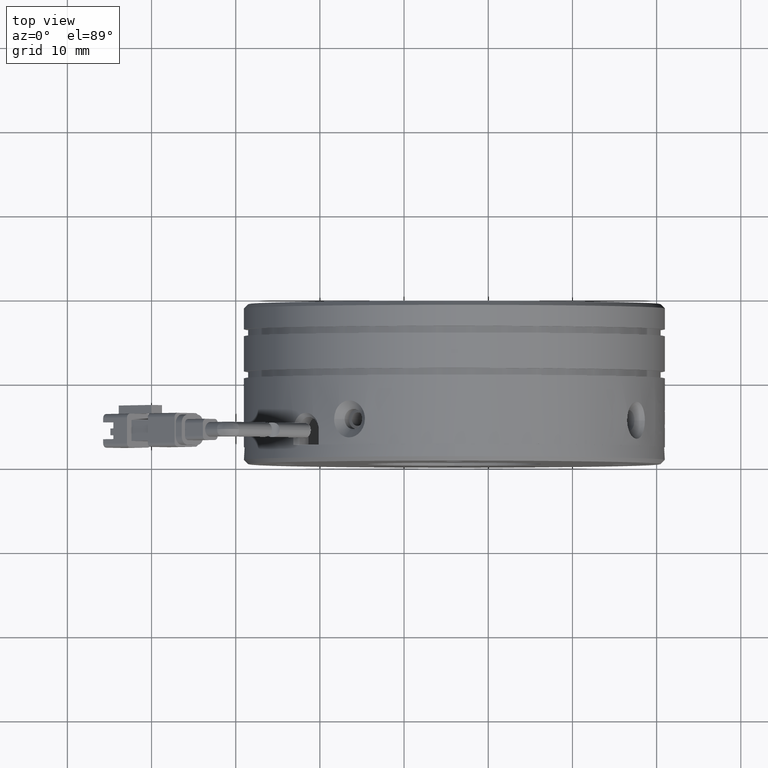
[diagram: clean part render]
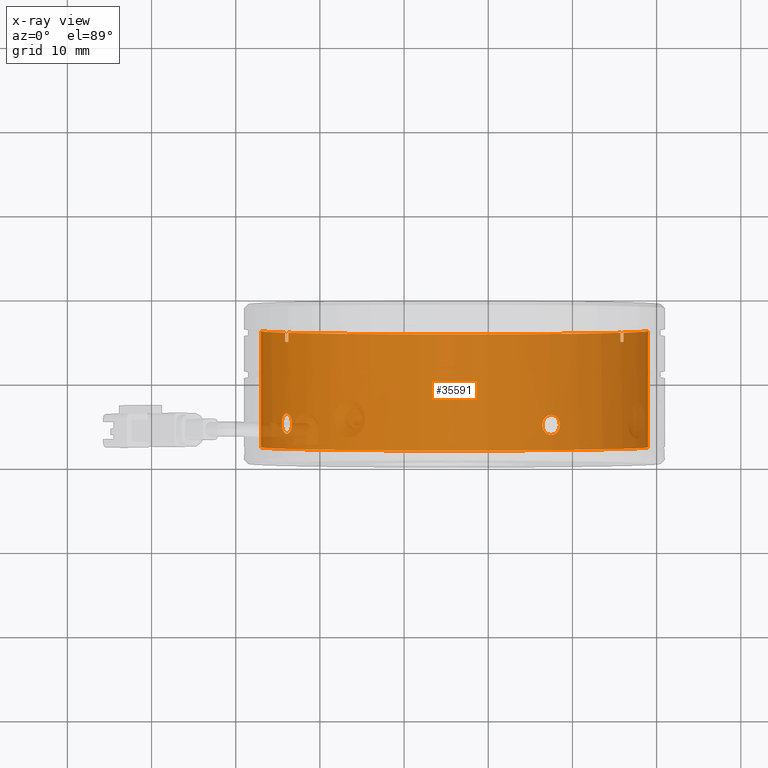
[diagram: x-ray — body ghosted, one internal face saturated and labeled with its STEP entity id]
A machine part, top view, then the same camera in x-ray: the body is ghosted and one INTERNAL B-rep face — a face not visible from any outside direction — is saturated and labeled: STEP entity #35591.
In plain terms, the highlighted cylindrical surface (partial cylindrical patch) has radius 23 mm, axis along (0, -1, 0).
Its self-contained STEP definition (entity closure, byte-faithful):
#351 = EDGE_CURVE ( 'NONE', #50149, #31456, #7335, .T. ) ;
#504 = VERTEX_POINT ( 'NONE', #50276 ) ;
#698 = B_SPLINE_CURVE_WITH_KNOTS ( 'NONE', 3,
 ( #6018, #20363, #54012, #25155, #58797, #29966 ),
 .UNSPECIFIED., .F., .F.,
 ( 4, 2, 4 ),
 ( 1.758853789119408300E-014, 0.0003891355553897409600, 0.0007782711107618934500 ),
 .UNSPECIFIED. ) ;
#1112 = CARTESIAN_POINT ( 'NONE',  ( 7.200301966129214500, 3.999887109736792300, -20.07473702314969400 ) ) ;
#2429 = ORIENTED_EDGE ( 'NONE', *, *, #7417, .T. ) ;
#2700 = EDGE_CURVE ( 'NONE', #23951, #53088, #13517, .T. ) ;
#2881 = CARTESIAN_POINT ( 'NONE',  ( -23.63592696921703500, 6.216857703484254000, -12.01933865272883000 ) ) ;
#3945 = VECTOR ( 'NONE', #33168, 1000.000000000000000 ) ;
#3962 = CARTESIAN_POINT ( 'NONE',  ( -23.31727409074066400, 5.168234147060708500, -12.52356764434301100 ) ) ;
#4750 = CARTESIAN_POINT ( 'NONE',  ( -23.97722481509784500, 14.83802741222081100, -11.44352997356001100 ) ) ;
#4757 = CARTESIAN_POINT ( 'NONE',  ( 8.105686671544905400, 4.207178556900186300, -19.54070514681510700 ) ) ;
#4922 = CARTESIAN_POINT ( 'NONE',  ( -23.75213114965118400, 14.91823414705608800, -11.82677448507443800 ) ) ;
#5135 = CARTESIAN_POINT ( 'NONE',  ( 16.07962476567177700, 19.16823414706070800, -11.17010051490488600 ) ) ;
#5597 = CARTESIAN_POINT ( 'NONE',  ( 6.947364020103898400, 4.119610590637164700, -20.21410677520329800 ) ) ;
#5783 = CARTESIAN_POINT ( 'NONE',  ( 6.829413851103458600, 4.209014772784638800, -20.27747997956227600 ) ) ;
#5873 = EDGE_LOOP ( 'NONE', ( #18713, #12862 ) ) ;
#5993 = CARTESIAN_POINT ( 'NONE',  ( 6.633624719149183100, 4.430366498306113100, -20.38108274920750400 ) ) ;
#6016 = B_SPLINE_CURVE_WITH_KNOTS ( 'NONE', 3,
 ( #33101, #23692, #4750, #38214, #9511, #43049 ),
 .UNSPECIFIED., .F., .F.,
 ( 4, 2, 4 ),
 ( 6.971257758409268300E-016, 0.0003392395238574776000, 0.0006784790477142580600 ),
 .UNSPECIFIED. ) ;
#6018 = CARTESIAN_POINT ( 'NONE',  ( 15.70049387221283300, 14.91823414709988100, -11.82677448509476600 ) ) ;
#6762 = AXIS2_PLACEMENT_3D ( 'NONE', #30874, #30804, #30764 ) ;
#7216 = VERTEX_POINT ( 'NONE', #47877 ) ;
#7335 = B_SPLINE_CURVE_WITH_KNOTS ( 'NONE', 3,
 ( #57738, #58156, #52107, #58373, #58577, #58703, #58776, #59178, #11372, #59706, #59372, #59501, #38553, #59781, #59895, #59981, #60063, #60185 ),
 .UNSPECIFIED., .F., .F.,
 ( 4, 2, 2, 2, 2, 2, 2, 2, 4 ),
 ( 0.003751597913190332100, 0.004220547989596542600, 0.004689498066002753900, 0.005158448142408964300, 0.005627398218815174800, 0.006096348295221385200, 0.006565298371627595700, 0.007034248448033807000, 0.007503198524440017400 ),
 .UNSPECIFIED. ) ;
#7417 = EDGE_CURVE ( 'NONE', #31927, #10276, #40613, .T. ) ;
#7578 = ORIENTED_EDGE ( 'NONE', *, *, #9425, .F. ) ;
#7587 = CARTESIAN_POINT ( 'NONE',  ( -27.02581863871307600, 2.168234147060708900, 3.167454145892285200E-015 ) ) ;
#7643 = CARTESIAN_POINT ( 'NONE',  ( -23.86572187617173700, 6.368126671223016900, -11.63626836060394600 ) ) ;
#7870 = VERTEX_POINT ( 'NONE', #10355 ) ;
#8248 = CARTESIAN_POINT ( 'NONE',  ( -24.51727409074066000, 5.168234147060708500, -10.44510667526038500 ) ) ;
#8930 = AXIS2_PLACEMENT_3D ( 'NONE', #12222, #60431, #22203 ) ;
#9361 = VERTEX_POINT ( 'NONE', #33871 ) ;
#9425 = EDGE_CURVE ( 'NONE', #31927, #48416, #54527, .T. ) ;
#9511 = CARTESIAN_POINT ( 'NONE',  ( -23.80730710370534100, 14.87997379590575700, -11.73474448026344200 ) ) ;
#10276 = VERTEX_POINT ( 'NONE', #7587 ) ;
#10311 = CARTESIAN_POINT ( 'NONE',  ( 18.97418136128692400, 15.96823414706070900, 3.607411678402394600E-016 ) ) ;
#10355 = CARTESIAN_POINT ( 'NONE',  ( 16.07962476566575200, 14.91823414709545900, -11.17010051491571300 ) ) ;
#10421 = CARTESIAN_POINT ( 'NONE',  ( -24.11658433066670800, 14.90745792059463100, -11.19651942816333300 ) ) ;
#10583 = FACE_BOUND ( 'NONE', #5873, .T. ) ;
#10779 = CARTESIAN_POINT ( 'NONE',  ( 6.554392098376819600, 4.563459004488598800, -20.42211488420486600 ) ) ;
#11372 = CARTESIAN_POINT ( 'NONE',  ( -24.02307426297841900, 3.968341622898398800, -11.36372603196254800 ) ) ;
#11386 = CARTESIAN_POINT ( 'NONE',  ( 16.07962476567176300, 15.96823414706070900, -11.17010051490488800 ) ) ;
#12076 = LINE ( 'NONE', #22401, #37538 ) ;
#12222 = CARTESIAN_POINT ( 'NONE',  ( -4.025818638713078100, 15.96823414706070900, 3.557538378468061400E-016 ) ) ;
#12436 = CARTESIAN_POINT ( 'NONE',  ( -24.09945929368546300, 6.337311667188216400, -11.22809287657485600 ) ) ;
#12862 = ORIENTED_EDGE ( 'NONE', *, *, #13451, .F. ) ;
#13451 = EDGE_CURVE ( 'NONE', #53088, #23951, #42444, .T. ) ;
#13517 = B_SPLINE_CURVE_WITH_KNOTS ( 'NONE', 3,
 ( #34592, #14934, #15149, #10779, #5993, #5783, #5597, #1112, #52760, #47459, #37783, #62145, #4757, #57139, #56932, #52334, #52112, #28509 ),
 .UNSPECIFIED., .F., .F.,
 ( 4, 2, 2, 2, 2, 2, 2, 2, 4 ),
 ( 0.0000000000000000000, 0.0004689497391487928700, 0.0009378994782975857400, 0.001406849217446378600, 0.001875798956595171500, 0.002344748695743964400, 0.002813698434892757100, 0.003282648174041550300, 0.003751597913190343000 ),
 .UNSPECIFIED. ) ;
#14222 = VECTOR ( 'NONE', #14898, 1000.000000000000000 ) ;
#14725 = DIRECTION ( 'NONE',  ( 0.0000000000000000000, -1.000000000000000000, 0.0000000000000000000 ) ) ;
#14898 = DIRECTION ( 'NONE',  ( -0.0000000000000000000, -1.000000000000000000, 0.0000000000000000000 ) ) ;
#14917 = EDGE_CURVE ( 'NONE', #504, #18435, #39540, .T. ) ;
#14934 = CARTESIAN_POINT ( 'NONE',  ( 6.419288036547238900, 5.009664838911916700, -20.49145545202761600 ) ) ;
#15149 = CARTESIAN_POINT ( 'NONE',  ( 6.447171931464920300, 4.854069292808164300, -20.47730705199924000 ) ) ;
#15171 = AXIS2_PLACEMENT_3D ( 'NONE', #17113, #17050, #17044 ) ;
#15648 = DIRECTION ( 'NONE',  ( -0.0000000000000000000, 1.000000000000000000, -0.0000000000000000000 ) ) ;
#15796 = CARTESIAN_POINT ( 'NONE',  ( 8.497749005629868800, 5.168234147060708500, -19.29145545202763000 ) ) ;
#16256 = CARTESIAN_POINT ( 'NONE',  ( 6.419288036547241600, 5.326803569248748500, -20.49145545202761900 ) ) ;
#16324 = CARTESIAN_POINT ( 'NONE',  ( 6.419288036547239800, 5.168234147060708500, -20.49145545202761900 ) ) ;
#16338 = CARTESIAN_POINT ( 'NONE',  ( 6.447232694357950300, 5.482696053805874200, -20.47727621323946300 ) ) ;
#16342 = LINE ( 'NONE', #34330, #54687 ) ;
#16718 = CARTESIAN_POINT ( 'NONE',  ( 6.554596232143154600, 5.773429887791558600, -20.42200936487416000 ) ) ;
#16840 = CARTESIAN_POINT ( 'NONE',  ( 6.632915089850048000, 5.905454435005612600, -20.38146152833930100 ) ) ;
#17005 = CARTESIAN_POINT ( 'NONE',  ( -23.31727409074066400, 5.168234147060708500, -12.52356764434301100 ) ) ;
#17044 = DIRECTION ( 'NONE',  ( 1.000000000000000000, 0.0000000000000000000, 2.168404344971000200E-019 ) ) ;
#17050 = DIRECTION ( 'NONE',  ( 0.0000000000000000000, -1.000000000000000000, 0.0000000000000000000 ) ) ;
#17113 = CARTESIAN_POINT ( 'NONE',  ( -4.025818638713078100, 15.96823414706070900, 3.557538378468061400E-016 ) ) ;
#17212 = CARTESIAN_POINT ( 'NONE',  ( -24.30236299694980000, 6.129289737221230700, -10.85699440987434800 ) ) ;
#17420 = CARTESIAN_POINT ( 'NONE',  ( 6.831175771161197100, 6.129289737221221800, -20.27654435823675200 ) ) ;
#17472 = CARTESIAN_POINT ( 'NONE',  ( 7.202274237861703700, 6.337311667188211000, -20.07364065497242600 ) ) ;
#17548 = CARTESIAN_POINT ( 'NONE',  ( 6.947721575141827100, 6.217228150472411800, -20.21391931231695000 ) ) ;
#17624 = CARTESIAN_POINT ( 'NONE',  ( 7.339336346197720600, 6.368341060133238900, -19.99644353380551100 ) ) ;
#18162 = CARTESIAN_POINT ( 'NONE',  ( 7.610449721890795200, 6.368126671223016000, -19.83990323745869900 ) ) ;
#18435 = VERTEX_POINT ( 'NONE', #25422 ) ;
#18447 = CARTESIAN_POINT ( 'NONE',  ( 7.746353295205459200, 6.336581184384623800, -19.75947414131616900 ) ) ;
#18570 = CARTESIAN_POINT ( 'NONE',  ( 7.993520014015684800, 6.216857703484254000, -19.61010833050399400 ) ) ;
#18582 = CARTESIAN_POINT ( 'NONE',  ( 8.107377903409993500, 6.127453521336780900, -19.53964708994842800 ) ) ;
#18712 = CARTESIAN_POINT ( 'NONE',  ( 8.294995099802328300, 5.906101795815303900, -19.42189011271373600 ) ) ;
#18713 = ORIENTED_EDGE ( 'NONE', *, *, #2700, .F. ) ;
#19118 = VERTEX_POINT ( 'NONE', #4922 ) ;
#19125 = CARTESIAN_POINT ( 'NONE',  ( 8.370146281467745200, 5.773009289632824400, -19.37378871781514200 ) ) ;
#19136 = CARTESIAN_POINT ( 'NONE',  ( 8.471554184323547800, 5.482399001313250000, -19.30852941336860000 ) ) ;
#20363 = CARTESIAN_POINT ( 'NONE',  ( 15.76380047251868900, 14.87433580771676500, -11.72118307610875100 ) ) ;
#21617 = CARTESIAN_POINT ( 'NONE',  ( 8.497749005629806600, 5.326803455210077600, -19.29145545202767000 ) ) ;
#22024 = CARTESIAN_POINT ( 'NONE',  ( -24.44782800358720800, 5.773429887791549800, -10.58041487085629100 ) ) ;
#22203 = DIRECTION ( 'NONE',  ( 1.000000000000000000, 0.0000000000000000000, 2.168404344971000200E-019 ) ) ;
#22401 = CARTESIAN_POINT ( 'NONE',  ( -24.13126204309777700, 19.16823414706070800, -11.17010051490515300 ) ) ;
#22494 = ORIENTED_EDGE ( 'NONE', *, *, #28351, .T. ) ;
#22643 = CARTESIAN_POINT ( 'NONE',  ( 8.497749005629868800, 5.168234147060708500, -19.29145545202763000 ) ) ;
#23082 = VECTOR ( 'NONE', #23463, 1000.000000000000000 ) ;
#23159 = EDGE_LOOP ( 'NONE', ( #7578, #2429, #60571, #56357, #55129, #51332, #47888, #43761, #39768, #36047, #33073, #29868, #22494 ) ) ;
#23274 = ORIENTED_EDGE ( 'NONE', *, *, #351, .F. ) ;
#23314 = EDGE_CURVE ( 'NONE', #46266, #18435, #35842, .T. ) ;
#23463 = DIRECTION ( 'NONE',  ( 0.0000000000000000000, 1.000000000000000000, -0.0000000000000000000 ) ) ;
#23692 = CARTESIAN_POINT ( 'NONE',  ( -24.03305864746466400, 14.85614627210344100, -11.34558758762871700 ) ) ;
#23951 = VERTEX_POINT ( 'NONE', #39148 ) ;
#23962 = CARTESIAN_POINT ( 'NONE',  ( 18.97418136128692400, 15.96823414706070900, 3.607411678402394600E-016 ) ) ;
#24705 = DIRECTION ( 'NONE',  ( 0.0000000000000000000, -1.000000000000000000, 0.0000000000000000000 ) ) ;
#24809 = CARTESIAN_POINT ( 'NONE',  ( -24.08666358602147600, 14.88835536865518200, -11.25000000000226100 ) ) ;
#25155 = CARTESIAN_POINT ( 'NONE',  ( 15.95881437383662200, 14.84346665168640700, -11.38557509623158700 ) ) ;
#25422 = CARTESIAN_POINT ( 'NONE',  ( 15.70049387221281900, 15.96823414706070900, -11.82677448509477200 ) ) ;
#26609 = CARTESIAN_POINT ( 'NONE',  ( -23.39960735652817500, 5.773009289632813800, -12.39596492018088700 ) ) ;
#26815 = CARTESIAN_POINT ( 'NONE',  ( -24.51727409074070600, 5.326803341169756400, -10.44510667526032000 ) ) ;
#27692 = CIRCLE ( 'NONE', #58035, 23.00000000000000000 ) ;
#28025 = CARTESIAN_POINT ( 'NONE',  ( -24.13126204309777700, 14.91823414706268200, -11.17010051490515300 ) ) ;
#28351 = EDGE_CURVE ( 'NONE', #40252, #48416, #12076, .T. ) ;
#28456 = B_SPLINE_CURVE_WITH_KNOTS ( 'NONE', 3,
 ( #17005, #45784, #55453, #26609, #60254, #31440, #2881, #36285, #7643, #41149, #12436, #45988, #17212, #50830, #22024, #55670, #26815, #60460 ),
 .UNSPECIFIED., .F., .F.,
 ( 4, 2, 2, 2, 2, 2, 2, 2, 4 ),
 ( 0.0000000000000000000, 0.0004689497391487915200, 0.0009378994782975830300, 0.001406849217446374700, 0.001875798956595166100, 0.002344748695743957500, 0.002813698434892749300, 0.003282648174041540700, 0.003751597913190332100 ),
 .UNSPECIFIED. ) ;
#28509 = CARTESIAN_POINT ( 'NONE',  ( 8.497749005629868800, 5.168234147060708500, -19.29145545202763000 ) ) ;
#29790 = VERTEX_POINT ( 'NONE', #23962 ) ;
#29868 = ORIENTED_EDGE ( 'NONE', *, *, #56198, .F. ) ;
#29966 = CARTESIAN_POINT ( 'NONE',  ( 16.07962476566575200, 14.91823414709545900, -11.17010051491571300 ) ) ;
#30764 = DIRECTION ( 'NONE',  ( 1.000000000000000000, 0.0000000000000000000, 2.168404344971000200E-019 ) ) ;
#30804 = DIRECTION ( 'NONE',  ( 0.0000000000000000000, -1.000000000000000000, 0.0000000000000000000 ) ) ;
#30874 = CARTESIAN_POINT ( 'NONE',  ( -4.025818638713078100, 15.96823414706070900, 3.557538378468061400E-016 ) ) ;
#31214 = CARTESIAN_POINT ( 'NONE',  ( -27.02581863871307600, 15.96823414706070900, 3.167454145892285200E-015 ) ) ;
#31440 = CARTESIAN_POINT ( 'NONE',  ( -23.56546572866146900, 6.127453521336774700, -12.13319654212314300 ) ) ;
#31456 = VERTEX_POINT ( 'NONE', #3962 ) ;
#31927 = VERTEX_POINT ( 'NONE', #31214 ) ;
#33073 = ORIENTED_EDGE ( 'NONE', *, *, #51788, .F. ) ;
#33101 = CARTESIAN_POINT ( 'NONE',  ( -24.08666358602147600, 14.88835536865518200, -11.25000000000226100 ) ) ;
#33168 = DIRECTION ( 'NONE',  ( 0.0000000000000000000, -1.000000000000000000, 0.0000000000000000000 ) ) ;
#33241 = CARTESIAN_POINT ( 'NONE',  ( -27.02581863871307600, 15.96823414706070900, 3.167454145892285200E-015 ) ) ;
#33495 = CARTESIAN_POINT ( 'NONE',  ( 15.70049387221283300, 14.91823414709988100, -11.82677448509476600 ) ) ;
#33871 = CARTESIAN_POINT ( 'NONE',  ( 18.97418136128692400, 2.168234147060708900, 3.607411678402394600E-016 ) ) ;
#34330 = CARTESIAN_POINT ( 'NONE',  ( -23.75213114963883100, 19.16823414706070800, -11.82677448509504000 ) ) ;
#34506 = FACE_BOUND ( 'NONE', #36404, .T. ) ;
#34592 = CARTESIAN_POINT ( 'NONE',  ( 6.419288036547239800, 5.168234147060708500, -20.49145545202761900 ) ) ;
#35591 = ADVANCED_FACE ( 'NONE', ( #34506, #10583, #60070 ), #54110, .F. ) ;
#35796 = EDGE_CURVE ( 'NONE', #39382, #7870, #39748, .T. ) ;
#35842 = LINE ( 'NONE', #47426, #23082 ) ;
#36047 = ORIENTED_EDGE ( 'NONE', *, *, #50577, .T. ) ;
#36285 = CARTESIAN_POINT ( 'NONE',  ( -23.78529278002920600, 6.336581184384623800, -11.77217193391860100 ) ) ;
#36404 = EDGE_LOOP ( 'NONE', ( #39215, #23274 ) ) ;
#36989 = EDGE_CURVE ( 'NONE', #46266, #7870, #698, .T. ) ;
#37538 = VECTOR ( 'NONE', #56047, 1000.000000000000000 ) ;
#37783 = CARTESIAN_POINT ( 'NONE',  ( 7.744417676645795700, 3.999156626933201100, -19.76063399465103400 ) ) ;
#38214 = CARTESIAN_POINT ( 'NONE',  ( -23.86284854352407000, 14.85100099504852800, -11.64067142507188100 ) ) ;
#38553 = CARTESIAN_POINT ( 'NONE',  ( -23.56652378552814000, 4.207178556900194300, -12.13150531025805100 ) ) ;
#39148 = CARTESIAN_POINT ( 'NONE',  ( 6.419288036547239800, 5.168234147060708500, -20.49145545202761900 ) ) ;
#39213 = DIRECTION ( 'NONE',  ( -0.0000000000000000000, -1.000000000000000000, 0.0000000000000000000 ) ) ;
#39215 = ORIENTED_EDGE ( 'NONE', *, *, #54107, .F. ) ;
#39382 = VERTEX_POINT ( 'NONE', #11386 ) ;
#39540 = CIRCLE ( 'NONE', #15171, 23.00000000000000000 ) ;
#39748 = LINE ( 'NONE', #5135, #14222 ) ;
#39768 = ORIENTED_EDGE ( 'NONE', *, *, #14917, .F. ) ;
#40252 = VERTEX_POINT ( 'NONE', #28025 ) ;
#40613 = LINE ( 'NONE', #33241, #3945 ) ;
#41149 = CARTESIAN_POINT ( 'NONE',  ( -24.02226217251855900, 6.368341060133242400, -11.36515498491086400 ) ) ;
#42444 = B_SPLINE_CURVE_WITH_KNOTS ( 'NONE', 3,
 ( #22643, #21617, #19136, #19125, #18712, #18582, #18570, #18447, #18162, #17624, #17472, #17548, #17420, #16840, #16718, #16338, #16256, #16324 ),
 .UNSPECIFIED., .F., .F.,
 ( 4, 2, 2, 2, 2, 2, 2, 2, 4 ),
 ( 0.003751597913190343000, 0.004220547989596555600, 0.004689498066002767800, 0.005158448142408979900, 0.005627398218815192100, 0.006096348295221404300, 0.006565298371627616500, 0.007034248448033828700, 0.007503198524440040900 ),
 .UNSPECIFIED. ) ;
#43049 = CARTESIAN_POINT ( 'NONE',  ( -23.75213114965118400, 14.91823414705608800, -11.82677448507443800 ) ) ;
#43460 = CARTESIAN_POINT ( 'NONE',  ( -4.025818638713078100, 15.96823414706070900, 3.557538378468061400E-016 ) ) ;
#43761 = ORIENTED_EDGE ( 'NONE', *, *, #23314, .T. ) ;
#44331 = EDGE_CURVE ( 'NONE', #39382, #29790, #49686, .T. ) ;
#44415 = CARTESIAN_POINT ( 'NONE',  ( -4.025818638713078100, 2.168234147060708900, 3.557538378468061400E-016 ) ) ;
#45157 = EDGE_CURVE ( 'NONE', #9361, #10276, #27692, .T. ) ;
#45784 = CARTESIAN_POINT ( 'NONE',  ( -23.31727409074066400, 5.326803455209498500, -12.52356764434300700 ) ) ;
#45988 = CARTESIAN_POINT ( 'NONE',  ( -24.23973795103000100, 6.217228150472412700, -10.97354021385497100 ) ) ;
#46266 = VERTEX_POINT ( 'NONE', #33495 ) ;
#46317 = EDGE_CURVE ( 'NONE', #29790, #9361, #54650, .T. ) ;
#47426 = CARTESIAN_POINT ( 'NONE',  ( 15.70049387221283300, 19.16823414706070800, -11.82677448509476600 ) ) ;
#47459 = CARTESIAN_POINT ( 'NONE',  ( 7.609031954448225200, 3.968127233988175500, -19.84073470178282200 ) ) ;
#47877 = CARTESIAN_POINT ( 'NONE',  ( -24.08666358602147600, 14.88835536865518200, -11.25000000000226100 ) ) ;
#47888 = ORIENTED_EDGE ( 'NONE', *, *, #36989, .F. ) ;
#47922 = AXIS2_PLACEMENT_3D ( 'NONE', #43460, #14725, #48289 ) ;
#48289 = DIRECTION ( 'NONE',  ( 1.000000000000000000, 0.0000000000000000000, 2.168404344971000200E-019 ) ) ;
#48416 = VERTEX_POINT ( 'NONE', #56307 ) ;
#49249 = DIRECTION ( 'NONE',  ( 1.000000000000000000, 0.0000000000000000000, 2.168404344971000200E-019 ) ) ;
#49686 = CIRCLE ( 'NONE', #47922, 23.00000000000000000 ) ;
#50149 = VERTEX_POINT ( 'NONE', #8248 ) ;
#50276 = CARTESIAN_POINT ( 'NONE',  ( -23.75213114963882400, 15.96823414706070900, -11.82677448509502600 ) ) ;
#50577 = EDGE_CURVE ( 'NONE', #504, #19118, #16342, .T. ) ;
#50830 = CARTESIAN_POINT ( 'NONE',  ( -24.40728016705234900, 5.905454435005602000, -10.65873372856318500 ) ) ;
#51332 = ORIENTED_EDGE ( 'NONE', *, *, #35796, .T. ) ;
#51788 = EDGE_CURVE ( 'NONE', #7216, #19118, #6016, .T. ) ;
#52107 = CARTESIAN_POINT ( 'NONE',  ( -24.50312569071227400, 4.854069292808167900, -10.47299057017806100 ) ) ;
#52112 = CARTESIAN_POINT ( 'NONE',  ( 8.497749005629934500, 5.009664952951660600, -19.29145545202758800 ) ) ;
#52334 = CARTESIAN_POINT ( 'NONE',  ( 8.471497095727651000, 4.853772240315533900, -19.30856661619768700 ) ) ;
#52760 = CARTESIAN_POINT ( 'NONE',  ( 7.337907393249398800, 3.968341622898399600, -19.99725562426538200 ) ) ;
#53088 = VERTEX_POINT ( 'NONE', #15796 ) ;
#53163 = VECTOR ( 'NONE', #24705, 1000.000000000000000 ) ;
#53658 = CARTESIAN_POINT ( 'NONE',  ( -24.10172105990644900, 14.89740281173176200, -11.22314972009963600 ) ) ;
#54012 = CARTESIAN_POINT ( 'NONE',  ( 15.82892478249419300, 14.84279221929445700, -11.61060035468653600 ) ) ;
#54107 = EDGE_CURVE ( 'NONE', #31456, #50149, #28456, .T. ) ;
#54110 = CYLINDRICAL_SURFACE ( 'NONE', #8930, 23.00000000000000000 ) ;
#54527 = CIRCLE ( 'NONE', #6762, 23.00000000000000000 ) ;
#54650 = LINE ( 'NONE', #10311, #53163 ) ;
#54687 = VECTOR ( 'NONE', #39213, 1000.000000000000000 ) ;
#54745 = B_SPLINE_CURVE_WITH_KNOTS ( 'NONE', 3,
 ( #58231, #10421, #53658, #24809 ),
 .UNSPECIFIED., .F., .F.,
 ( 4, 4 ),
 ( 7.106630889490698700E-016, 9.625846192079707600E-005 ),
 .UNSPECIFIED. ) ;
#55129 = ORIENTED_EDGE ( 'NONE', *, *, #44331, .F. ) ;
#55453 = CARTESIAN_POINT ( 'NONE',  ( -23.33434805208164100, 5.482399001313252600, -12.49737282303668500 ) ) ;
#55670 = CARTESIAN_POINT ( 'NONE',  ( -24.50309485195251100, 5.482696053805885800, -10.47305133307109400 ) ) ;
#56047 = DIRECTION ( 'NONE',  ( 0.0000000000000000000, 1.000000000000000000, -0.0000000000000000000 ) ) ;
#56198 = EDGE_CURVE ( 'NONE', #40252, #7216, #54745, .T. ) ;
#56307 = CARTESIAN_POINT ( 'NONE',  ( -24.13126204309777700, 15.96823414706070900, -11.17010051490514200 ) ) ;
#56357 = ORIENTED_EDGE ( 'NONE', *, *, #46317, .F. ) ;
#56932 = CARTESIAN_POINT ( 'NONE',  ( 8.369952832163601600, 4.563038406329866300, -19.37391274317719000 ) ) ;
#57139 = CARTESIAN_POINT ( 'NONE',  ( 8.295677946802465300, 4.431013859115814100, -19.42146494527930000 ) ) ;
#57738 = CARTESIAN_POINT ( 'NONE',  ( -24.51727409074066000, 5.168234147060708500, -10.44510667526038500 ) ) ;
#58035 = AXIS2_PLACEMENT_3D ( 'NONE', #44415, #15648, #49249 ) ;
#58156 = CARTESIAN_POINT ( 'NONE',  ( -24.51727409074062400, 5.009664838911338500, -10.44510667526045100 ) ) ;
#58231 = CARTESIAN_POINT ( 'NONE',  ( -24.13126204309777700, 14.91823414706268200, -11.17010051490515300 ) ) ;
#58373 = CARTESIAN_POINT ( 'NONE',  ( -24.44793352291791800, 4.563459004488588100, -10.58021073708997100 ) ) ;
#58577 = CARTESIAN_POINT ( 'NONE',  ( -24.40690138792054900, 4.430366498306113100, -10.65944335786233300 ) ) ;
#58703 = CARTESIAN_POINT ( 'NONE',  ( -24.30329861827532100, 4.209014772784633400, -10.85523248981661100 ) ) ;
#58776 = CARTESIAN_POINT ( 'NONE',  ( -24.23992541391634600, 4.119610590637159400, -10.97318265881704500 ) ) ;
#58797 = CARTESIAN_POINT ( 'NONE',  ( 16.02016269395164400, 14.87457770175983800, -11.27712831792939200 ) ) ;
#59178 = CARTESIAN_POINT ( 'NONE',  ( -24.10055566186272800, 3.999887109736790500, -11.22612060484236300 ) ) ;
#59372 = CARTESIAN_POINT ( 'NONE',  ( -23.78645263336407100, 3.999156626933202800, -11.77023631535894700 ) ) ;
#59501 = CARTESIAN_POINT ( 'NONE',  ( -23.63614288951995600, 4.119240143649001600, -12.01899752758801700 ) ) ;
#59706 = CARTESIAN_POINT ( 'NONE',  ( -23.86655334049586200, 3.968127233988175500, -11.63485059316136700 ) ) ;
#59781 = CARTESIAN_POINT ( 'NONE',  ( -23.44728358399235200, 4.431013859115802600, -12.32149658551559700 ) ) ;
#59895 = CARTESIAN_POINT ( 'NONE',  ( -23.39973138189022700, 4.563038406329858400, -12.39577147087673700 ) ) ;
#59981 = CARTESIAN_POINT ( 'NONE',  ( -23.33438525491072100, 4.853772240315541900, -12.49731573444079500 ) ) ;
#60063 = CARTESIAN_POINT ( 'NONE',  ( -23.31727409074066400, 5.009664724872667600, -12.52356764434301300 ) ) ;
#60070 = FACE_OUTER_BOUND ( 'NONE', #23159, .T. ) ;
#60185 = CARTESIAN_POINT ( 'NONE',  ( -23.31727409074066400, 5.168234147060708500, -12.52356764434301100 ) ) ;
#60254 = CARTESIAN_POINT ( 'NONE',  ( -23.44770875142677000, 5.906101795815301300, -12.32081373851547000 ) ) ;
#60431 = DIRECTION ( 'NONE',  ( 0.0000000000000000000, -1.000000000000000000, 0.0000000000000000000 ) ) ;
#60460 = CARTESIAN_POINT ( 'NONE',  ( -24.51727409074066000, 5.168234147060708500, -10.44510667526038500 ) ) ;
#60571 = ORIENTED_EDGE ( 'NONE', *, *, #45157, .F. ) ;
#62145 = CARTESIAN_POINT ( 'NONE',  ( 7.993178888874879800, 4.119240143649005100, -19.61032425080691200 ) ) ;